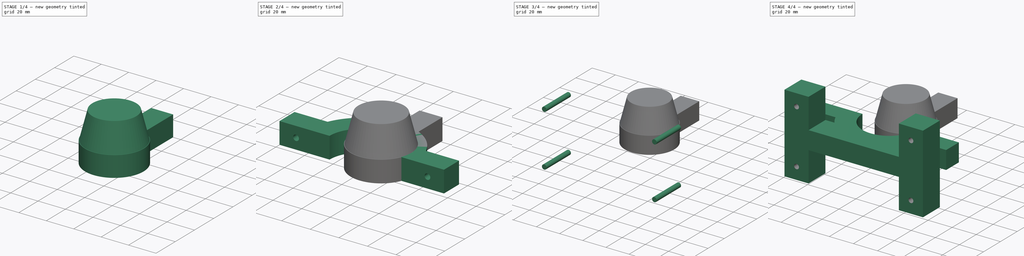
[diagram: build sequence overview — one tinted view per stage of 4, left to right]
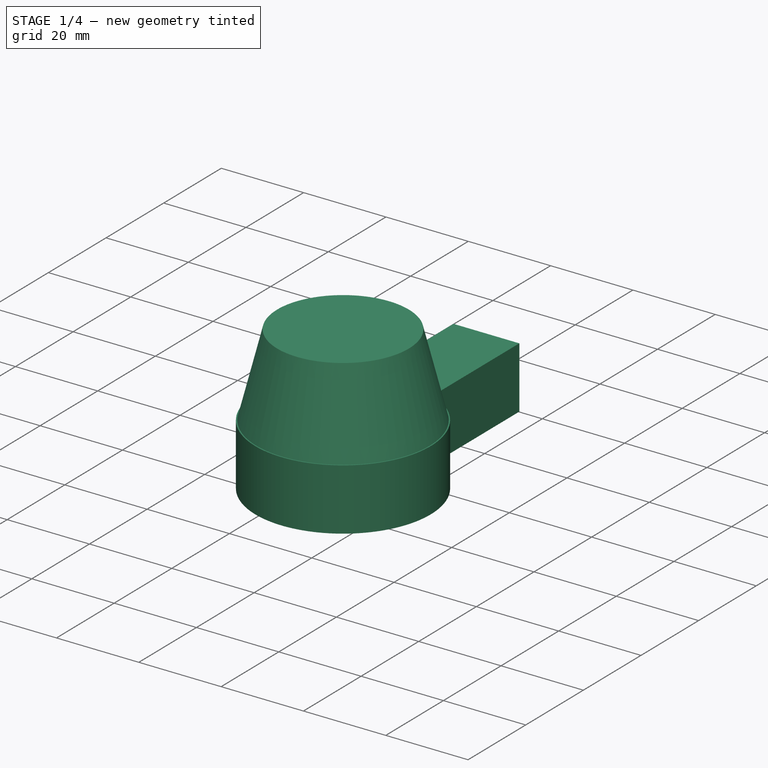
[diagram: stage 1 of 4 — iso view after this stage's code; geometry added in this stage tinted green]
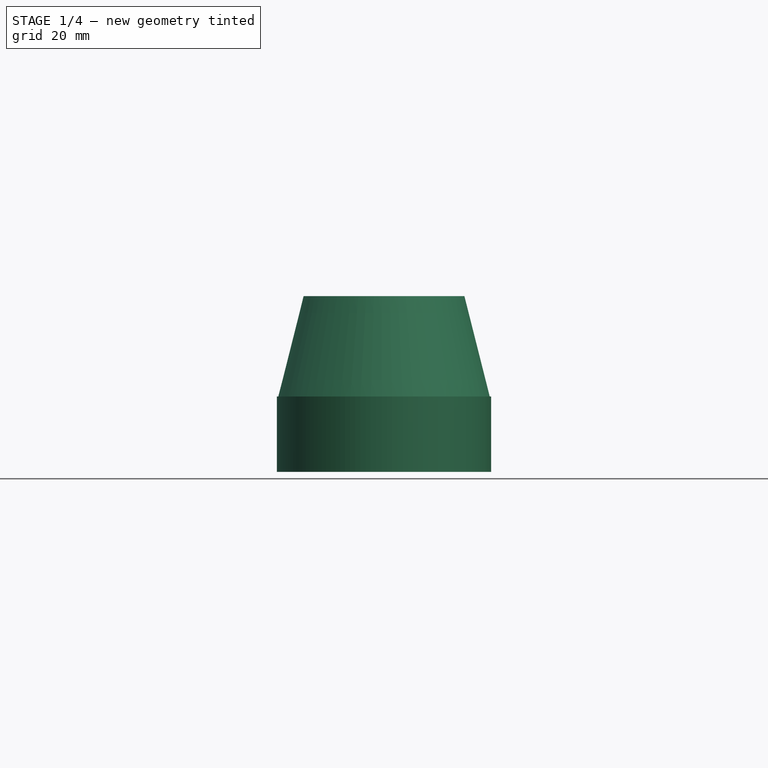
[diagram: stage 1 of 4 — front view after this stage's code; geometry added in this stage tinted green]
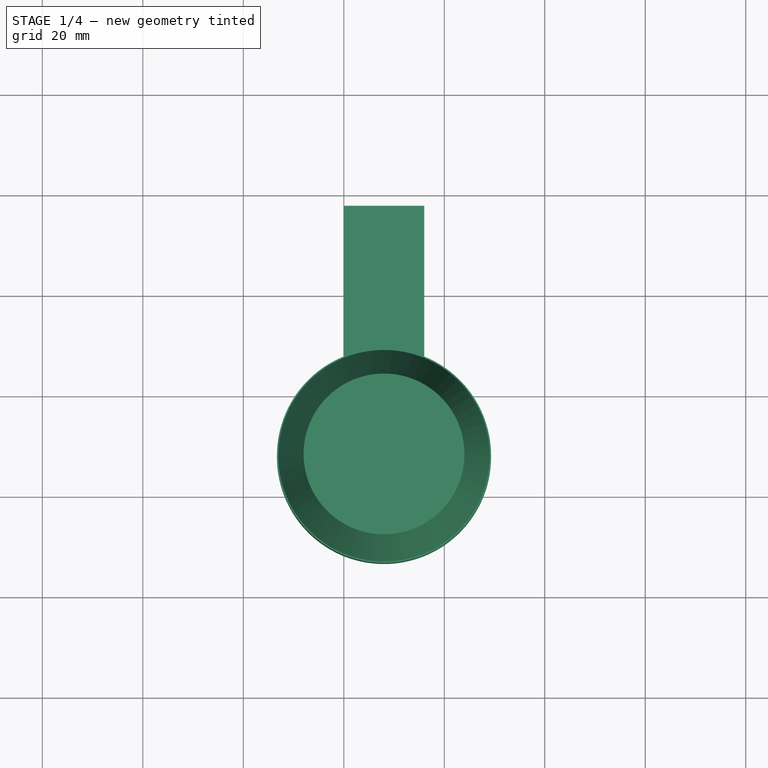
[diagram: stage 1 of 4 — top view after this stage's code; geometry added in this stage tinted green]
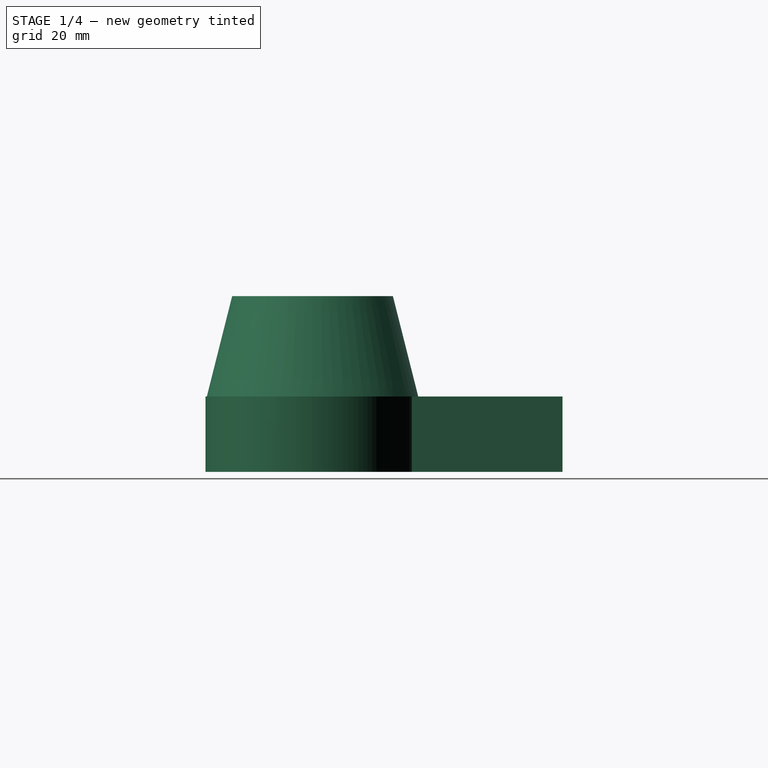
[diagram: stage 1 of 4 — right view after this stage's code; geometry added in this stage tinted green]
FCSTD DOCUMENT  (FreeCAD 0.20R29177 +426 (Git))
Label: ReverseMotorMount
License: All rights reserved
LicenseURL: http://en.wikipedia.org/wiki/All_rights_reserved
objects: Sketcher::SketchObject×9, Part::Extrusion×8, Part::Cut×3, Part::MultiFuse×2, Part::Loft×1
note: 23 computed .brp shape members not serialized (recipe doc carries the construction recipe); baked Part::Feature solids carry a one-line shape summary decoded from their .brp

FEATURE [Sketcher::SketchObject] Sketch005  label="SocketSketch"
  FullyConstrained = false
  sketch-geometry (16):
    g0: LineSegment StartX=0 StartY=0 StartZ=0 EndX=16 EndY=0 EndZ=0
    g1: LineSegment StartX=16 StartY=0 StartZ=0 EndX=16 EndY=16 EndZ=0
    g2: LineSegment StartX=16 StartY=16 StartZ=0 EndX=0 EndY=16 EndZ=0
    g3: LineSegment StartX=0 StartY=16 StartZ=0 EndX=0 EndY=0 EndZ=0
    g4: LineSegment StartX=0 StartY=0 StartZ=0 EndX=16 EndY=16 EndZ=0
    g5: LineSegment StartX=16 StartY=0 StartZ=0 EndX=0 EndY=16 EndZ=0
    g6: LineSegment StartX=16 StartY=16 StartZ=0 EndX=23.0711 EndY=23.0711 EndZ=0
    g7: LineSegment StartX=16 StartY=16 StartZ=0 EndX=0 EndY=16 EndZ=0
    g8: LineSegment StartX=16 StartY=27.7554 StartZ=0 EndX=16 EndY=16 EndZ=0
    g9: LineSegment StartX=0 StartY=16 StartZ=0 EndX=0 EndY=27.7554 EndZ=0
    g10: ArcOfCircle CenterX=8 CenterY=8 CenterZ=0 NormalX=0 NormalY=0 NormalZ=1 AngleXU=0 Radius=21.3137 StartAngle=1.95557 EndAngle=7.46921
    g11: ArcOfCircle CenterX=8 CenterY=8 CenterZ=0 NormalX=0 NormalY=0 NormalZ=1 AngleXU=0 Radius=21.3137 StartAngle=1.18603 EndAngle=1.95557
    g12: LineSegment StartX=0 StartY=27.7554 StartZ=0 EndX=16 EndY=27.7554 EndZ=0
    g13: LineSegment StartX=16 StartY=27.7554 StartZ=0 EndX=16 EndY=57.7554 EndZ=0
    g14: LineSegment StartX=16 StartY=57.7554 StartZ=0 EndX=0 EndY=57.7554 EndZ=0
    g15: LineSegment StartX=0 StartY=57.7554 StartZ=0 EndX=0 EndY=27.7554 EndZ=0
  constraints (14):
    c: DistanceY(g0,g10) = 8
    c: DistanceX(g0,g10) = 8
    c: Perpendicular(g3,g2)
    c: Perpendicular(g0,g1)
    c: Perpendicular(g2,g1)
    c: Coincident(g2,g3)
    c: Coincident(g2,g5)
    c: Coincident(g2,g7)
    c: Coincident(g2,g9)
    c: Coincident(g1,g2)
    c: Coincident(g1,g4)
    c: Coincident(g1,g6)
    c: Coincident(g1,g7)
    c: Coincident(g1,g8)
FEATURE [Part::Extrusion] Extrude006  label="Socket"
  Base = -> Sketch005
  Dir = (0,0,1)
  DirMode = 2
  FaceMakerClass = Part::FaceMakerBullseye
  LengthFwd = 15
  LengthRev = 0
  Solid = true
  Symmetric = false
FEATURE [Sketcher::SketchObject] Sketch006  label="ShaftTopSketch"
  AttachmentOffset = pos=(0,0,20) rot=(0,0,1;0rad)
  ExternalGeometry = -> [Extrude006]
  FullyConstrained = true
  MapMode = 5
  Placement = pos=(0,0,35) rot=(0,0,1;0rad)
  Support = -> [Extrude006]
  sketch-geometry (1):
    g0: Circle CenterX=8 CenterY=8 CenterZ=0 NormalX=0 NormalY=0 NormalZ=1 AngleXU=0 Radius=16
  constraints (2):
    c: Diameter(g0) = 32
    c: Coincident(g0,g-3)
FEATURE [Sketcher::SketchObject] Sketch007  label="ShaftBottomSketch"
  AttachmentOffset = pos=(0,0,-1) rot=(0,0,1;0rad)
  ExternalGeometry = -> [Sketch006,Extrude006]
  FullyConstrained = true
  MapMode = 5
  Placement = pos=(0,0,14) rot=(0,0,1;0rad)
  Support = -> [Extrude006]
  sketch-geometry (2):
    g0: Circle CenterX=8 CenterY=8 CenterZ=0 NormalX=0 NormalY=0 NormalZ=1 AngleXU=0 Radius=21.3
    g1: LineSegment StartX=0 StartY=0 StartZ=0 EndX=16 EndY=16 EndZ=0
  constraints (4):
    c: Diameter(g0) = 42.6
    c: Coincident(g0,g-3)
    c: Coincident(g1,g-4)
    c: Coincident(g1,g-5)
FEATURE [Part::Loft] Loft  label="Shaft"
  Closed = false
  MaxDegree = 5
  Ruled = false
  Sections = -> [Sketch006,Sketch007]
  Solid = true
FEATURE [Part::MultiFuse] Fusion001
  Shapes = -> [Loft,Extrude006]
FEATURE [Sketcher::SketchObject] Sketch008  label="ScrewHolesSketch"
  ExternalGeometry = -> [Sketch006]
  FullyConstrained = true
  MapMode = 5
  Placement = pos=(0,0,35) rot=(0,0,1;0rad)
  Support = -> [Loft]
  sketch-geometry (8):
    g0: Circle CenterX=16.4853 CenterY=16.4853 CenterZ=0 NormalX=0 NormalY=0 NormalZ=1 AngleXU=0 Radius=2
    g1: LineSegment StartX=8 StartY=8 StartZ=0 EndX=16.4853 EndY=16.4853 EndZ=0
    g2: Circle CenterX=-0.485281 CenterY=16.4853 CenterZ=0 NormalX=0 NormalY=0 NormalZ=1 AngleXU=0 Radius=2
    g3: LineSegment StartX=8 StartY=8 StartZ=0 EndX=-0.485281 EndY=16.4853 EndZ=0
    g4: Circle CenterX=-0.485281 CenterY=-0.485281 CenterZ=0 NormalX=0 NormalY=0 NormalZ=1 AngleXU=0 Radius=2
    g5: LineSegment StartX=8 StartY=8 StartZ=0 EndX=-0.485281 EndY=-0.485281 EndZ=0
    g6: Circle CenterX=16.4853 CenterY=-0.485281 CenterZ=0 NormalX=0 NormalY=0 NormalZ=1 AngleXU=0 Radius=2
    g7: LineSegment StartX=8 StartY=8 StartZ=0 EndX=16.4853 EndY=-0.485281 EndZ=0
  constraints (20):
    c: Distance(g-3,g0) = 12
    c: Diameter(g0) = 4
    c: Coincident(g1,g-3)
    c: Coincident(g1,g0)
    c: Angle(g-1,g1) = 0.785398
    c: Diameter(g2) = 4
    c: Coincident(g3,g2)
    c: Distance(g3) = 12
    c: Coincident(g3,g1)
    c: Angle(g3,g-1) = 0.785398
    c: Diameter(g4) = 4
    c: Coincident(g5,g4)
    c: Angle(g-1,g5) = 0.785398
    c: Coincident(g5,g1)
    c: Distance(g5) = 12
    c: Diameter(g6) = 4
    c: Coincident(g7,g6)
    c: Distance(g7) = 12
    c: Coincident(g7,g1)
    c: Angle(g7,g-1) = 0.785398
FEATURE [Part::Extrusion] Extrude007  label="ScrewHoles"
  Base = -> Sketch008
  Dir = (0,0,1)
  DirMode = 2
  FaceMakerClass = Part::FaceMakerBullseye
  LengthFwd = 0
  LengthRev = 20
  Solid = true
  Symmetric = false
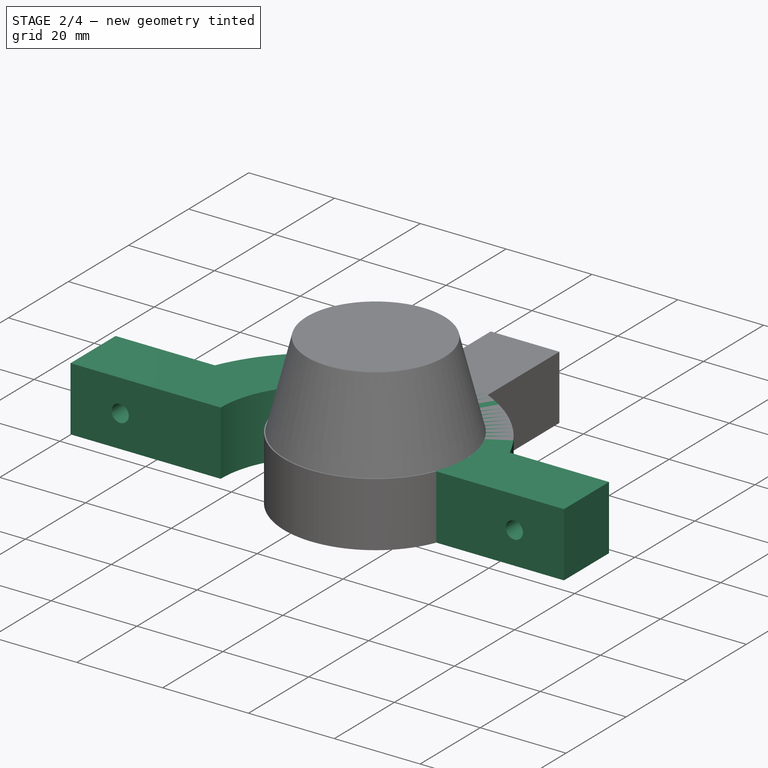
[diagram: stage 2 of 4 — iso view after this stage's code; geometry added in this stage tinted green]
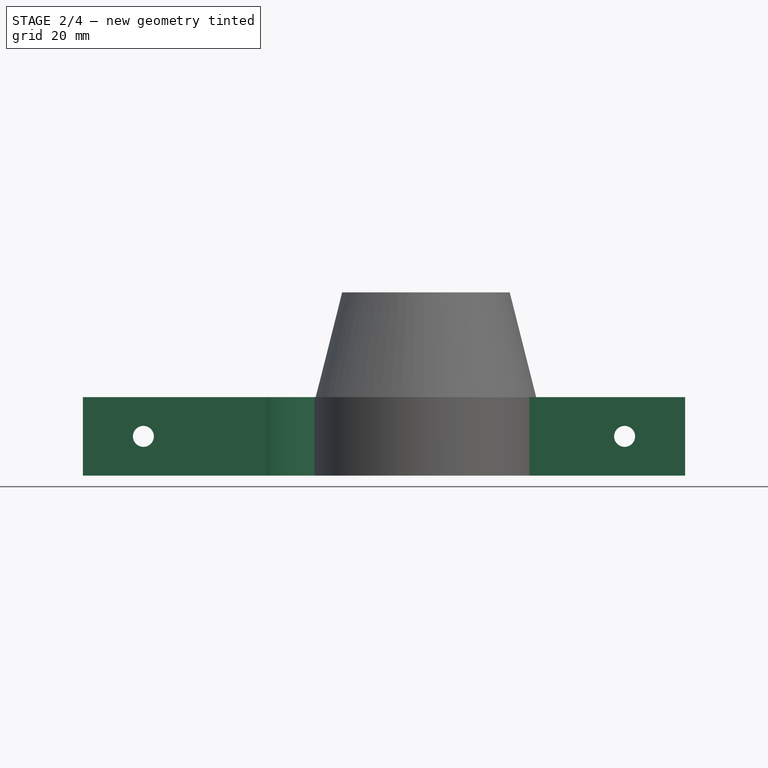
[diagram: stage 2 of 4 — front view after this stage's code; geometry added in this stage tinted green]
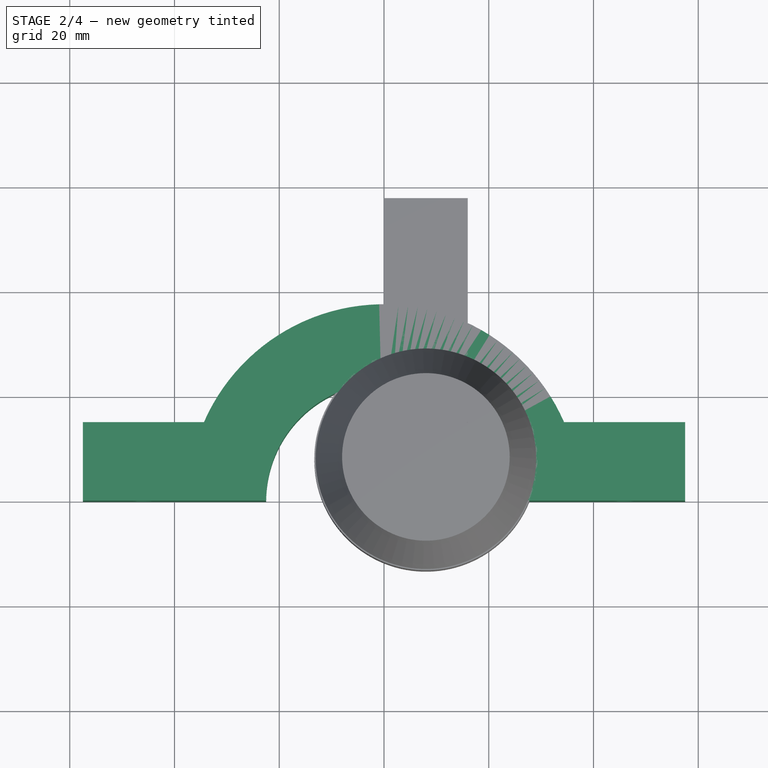
[diagram: stage 2 of 4 — top view after this stage's code; geometry added in this stage tinted green]
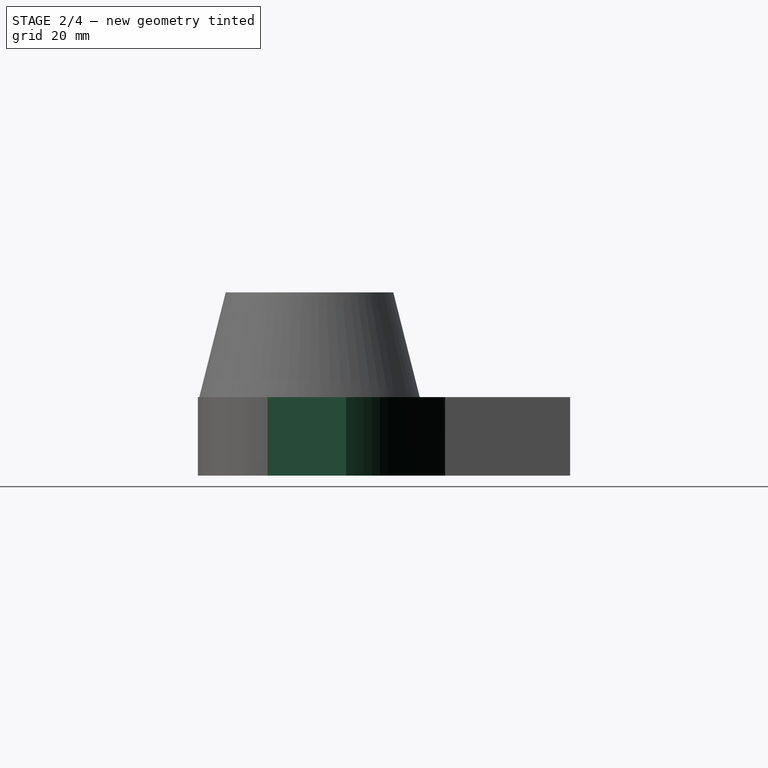
[diagram: stage 2 of 4 — right view after this stage's code; geometry added in this stage tinted green]
FEATURE [Sketcher::SketchObject] Sketch  label="TopSketch"
  FullyConstrained = true
  sketch-geometry (16):
    g0: ArcOfCircle CenterX=0 CenterY=0 CenterZ=0 NormalX=0 NormalY=0 NormalZ=1 AngleXU=0 Radius=22.5 StartAngle=0 EndAngle=3.14159
    g1: LineSegment StartX=-22.5 StartY=2.8e-15 StartZ=0 EndX=-37.5 EndY=4.6e-15 EndZ=0
    g2: LineSegment StartX=22.5 StartY=0 StartZ=0 EndX=37.5 EndY=0 EndZ=0
    g3: LineSegment StartX=-22.5 StartY=2.8e-15 StartZ=0 EndX=-57.5 EndY=2.8e-15 EndZ=0
    g4: LineSegment StartX=-57.5 StartY=2.8e-15 StartZ=0 EndX=-57.5 EndY=15 EndZ=0
    g5: LineSegment StartX=-22.5 StartY=15 StartZ=0 EndX=-22.5 EndY=3.6e-15 EndZ=0
    g6: ArcOfCircle CenterX=0 CenterY=0 CenterZ=0 NormalX=0 NormalY=0 NormalZ=1 AngleXU=0 Radius=37.5 StartAngle=2.73008 EndAngle=3.14159
    g7: LineSegment StartX=-57.5 StartY=15 StartZ=0 EndX=-34.3693 EndY=15 EndZ=0
    g8: LineSegment StartX=-34.3693 StartY=15 StartZ=0 EndX=-22.5 EndY=15 EndZ=0
    g9: LineSegment StartX=22.5 StartY=0 StartZ=0 EndX=57.5 EndY=0 EndZ=0
    g10: LineSegment StartX=57.5 StartY=0 StartZ=0 EndX=57.5 EndY=15 EndZ=0
    g11: LineSegment StartX=22.5 StartY=15 StartZ=0 EndX=22.5 EndY=0 EndZ=0
    g12: ArcOfCircle CenterX=0 CenterY=0 CenterZ=0 NormalX=0 NormalY=0 NormalZ=1 AngleXU=0 Radius=37.5 StartAngle=0 EndAngle=0.411517
    g13: ArcOfCircle CenterX=0 CenterY=0 CenterZ=0 NormalX=0 NormalY=0 NormalZ=1 AngleXU=0 Radius=37.5 StartAngle=0.411517 EndAngle=2.73008
    g14: LineSegment StartX=57.5 StartY=15 StartZ=0 EndX=34.3693 EndY=15 EndZ=0
    g15: LineSegment StartX=34.3693 StartY=15 StartZ=0 EndX=22.5 EndY=15 EndZ=0
  constraints (46):
    c: Coincident(g0,g-1)
    c: PointOnObject(g0,g-1)
    c: PointOnObject(g0,g-1)
    c: Radius(g0) = 22.5
    c: Coincident(g12,g0)
    c: PointOnObject(g12,g-1)
    c: PointOnObject(g6,g-1)
    c: Distance(g6,g0) = 15
    c: Coincident(g1,g0)
    c: Coincident(g1,g6)
    c: Coincident(g2,g0)
    c: Coincident(g2,g12)
    c: Coincident(g3,g4)
    c: Coincident(g4,g7)
    c: Coincident(g8,g5)
    c: Coincident(g5,g3)
    c: Horizontal(g3)
    c: Vertical(g4)
    c: Vertical(g5)
    c: Coincident(g3,g0)
    c: Distance(g4) = 15
    c: Distance(g3) = 35
    c: Coincident(g13,g6)
    c: Coincident(g12,g6)
    c: Coincident(g7,g8)
    c: Horizontal(g7)
    c: Horizontal(g8)
    c: PointOnObject(g7,g6)
    c: PointOnObject(g13,g8)
    c: Coincident(g9,g10)
    c: Coincident(g10,g14)
    c: Coincident(g15,g11)
    c: Coincident(g11,g9)
    c: Horizontal(g9)
    c: Vertical(g10)
    c: Vertical(g11)
    c: Coincident(g9,g0)
    c: Equal(g4,g10)
    c: Equal(g9,g3)
    c: Coincident(g12,g13)
    c: Coincident(g12,g13)
    c: Coincident(g14,g15)
    c: Horizontal(g14)
    c: Horizontal(g15)
    c: PointOnObject(g14,g12)
    c: PointOnObject(g12,g15)
FEATURE [Part::Extrusion] Extrude  label="TopBlock"
  Base = -> Sketch
  Dir = (0,0,1)
  DirMode = 2
  FaceMakerClass = Part::FaceMakerBullseye
  LengthFwd = 15
  LengthRev = 0
  Solid = true
  Symmetric = false
FEATURE [Sketcher::SketchObject] Sketch004  label="ConnectScrewsSketch"
  ExternalGeometry = -> [Extrude]
  FullyConstrained = true
  MapMode = 5
  Placement = pos=(0,15,0) rot=(0,0.707107,0.707107;3.14159rad)
  Support = -> [Extrude]
  sketch-geometry (10):
    g0: Circle CenterX=-45.9347 CenterY=7.5 CenterZ=0 NormalX=0 NormalY=0 NormalZ=1 AngleXU=0 Radius=2
    g1: Circle CenterX=45.9347 CenterY=7.5 CenterZ=0 NormalX=0 NormalY=0 NormalZ=1 AngleXU=0 Radius=2
    g2: LineSegment StartX=-57.5 StartY=15 StartZ=0 EndX=-45.9347 EndY=7.5 EndZ=0
    g3: LineSegment StartX=-45.9347 StartY=7.5 StartZ=0 EndX=-34.3693 EndY=15 EndZ=0
    g4: LineSegment StartX=-45.9347 StartY=7.5 StartZ=0 EndX=-34.3693 EndY=0 EndZ=0
    g5: LineSegment StartX=-45.9347 StartY=7.5 StartZ=0 EndX=-57.5 EndY=0 EndZ=0
    g6: LineSegment StartX=34.3693 StartY=15 StartZ=0 EndX=45.9347 EndY=7.5 EndZ=0
    g7: LineSegment StartX=57.5 StartY=15 StartZ=0 EndX=45.9347 EndY=7.5 EndZ=0
    g8: LineSegment StartX=45.9347 StartY=7.5 StartZ=0 EndX=34.3693 EndY=-2.7e-15 EndZ=0
    g9: LineSegment StartX=45.9347 StartY=7.5 StartZ=0 EndX=57.5 EndY=0 EndZ=0
  constraints (22):
    c: Coincident(g2,g-3)
    c: Coincident(g2,g0)
    c: Coincident(g3,g0)
    c: Coincident(g3,g-3)
    c: Coincident(g4,g0)
    c: Coincident(g4,g-5)
    c: Coincident(g5,g0)
    c: Coincident(g5,g-5)
    c: Equal(g2,g5)
    c: Equal(g5,g4)
    c: Diameter(g0) = 4
    c: Coincident(g6,g-4)
    c: Coincident(g6,g1)
    c: Coincident(g7,g-4)
    c: Coincident(g7,g1)
    c: Coincident(g8,g1)
    c: Coincident(g8,g-6)
    c: Coincident(g9,g1)
    c: Coincident(g9,g-6)
    c: Equal(g9,g7)
    c: Equal(g7,g6)
    c: Diameter(g1) = 4
FEATURE [Part::Extrusion] Extrude004  label="ConnectScrewsTop"
  Base = -> Sketch004
  Dir = (0,1,-2e-16)
  DirMode = 2
  FaceMakerClass = Part::FaceMakerBullseye
  LengthFwd = 0
  LengthRev = 30
  Solid = true
  Symmetric = false
FEATURE [Part::Cut] Cut001  label="Top"
  Base = -> Extrude
  Tool = -> Extrude004
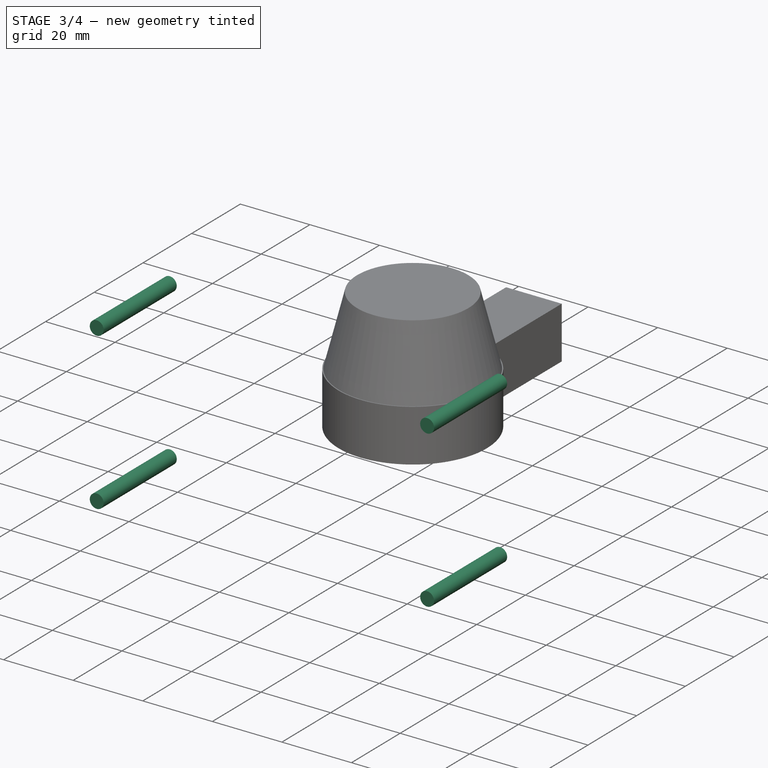
[diagram: stage 3 of 4 — iso view after this stage's code; geometry added in this stage tinted green]
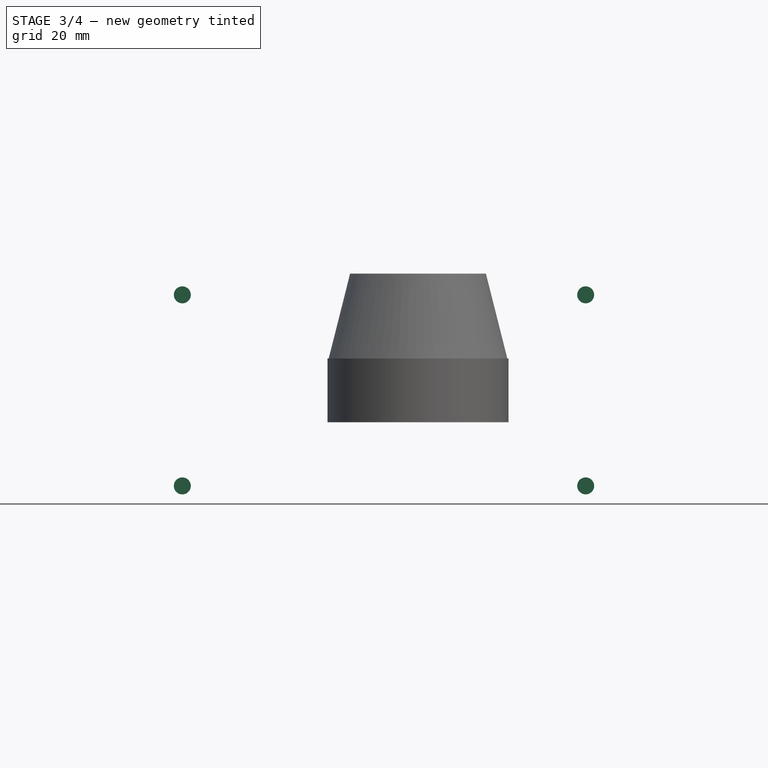
[diagram: stage 3 of 4 — front view after this stage's code; geometry added in this stage tinted green]
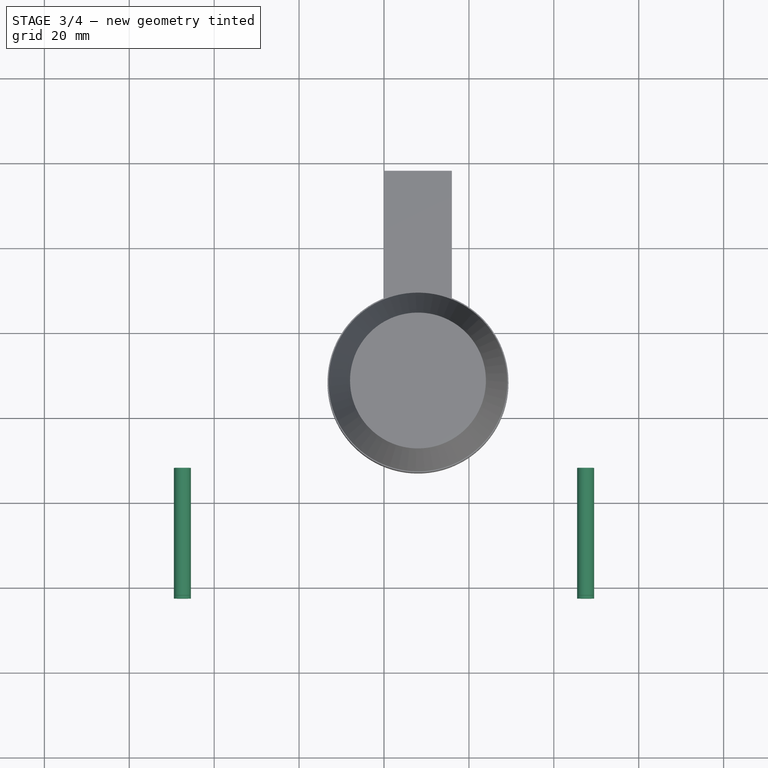
[diagram: stage 3 of 4 — top view after this stage's code; geometry added in this stage tinted green]
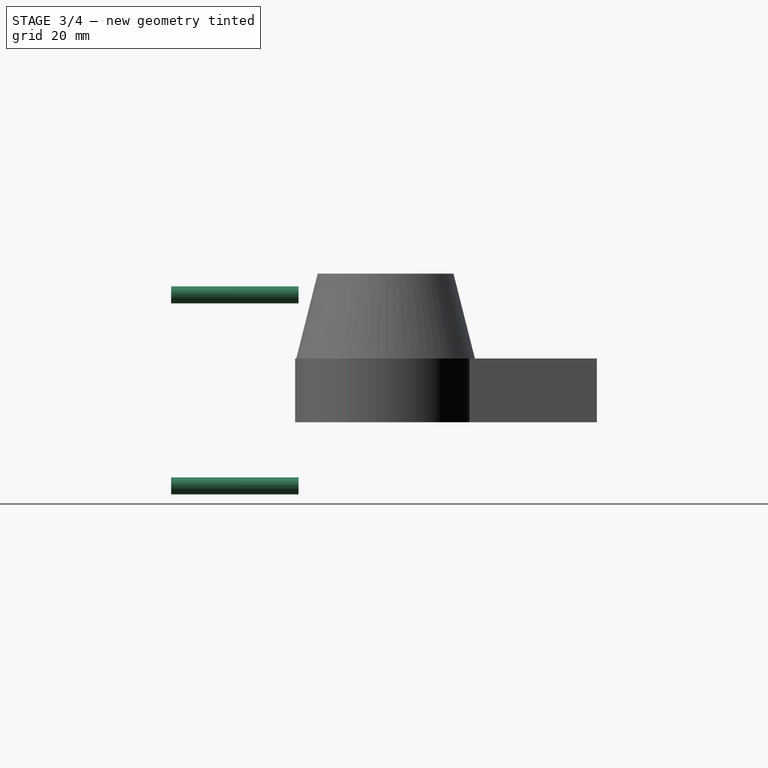
[diagram: stage 3 of 4 — right view after this stage's code; geometry added in this stage tinted green]
FEATURE [Sketcher::SketchObject] Sketch001  label="BottomSketch"
  ExternalGeometry = -> [Sketch,Cut001]
  FullyConstrained = true
  MapMode = 2
  Support = -> [Sketch]
  sketch-geometry (25):
    g0: ArcOfCircle CenterX=0 CenterY=0 CenterZ=0 NormalX=0 NormalY=0 NormalZ=1 AngleXU=0 Radius=22.5 StartAngle=3.14159 EndAngle=6.28319
    g1: LineSegment StartX=-22.5 StartY=3.6e-15 StartZ=0 EndX=-57.5 EndY=0 EndZ=0
    g2: LineSegment StartX=-57.5 StartY=0 StartZ=0 EndX=-57.5 EndY=-15 EndZ=0
    g3: LineSegment StartX=-22.5 StartY=-15 StartZ=0 EndX=-22.5 EndY=3.6e-15 EndZ=0
    g4: LineSegment StartX=-57.5 StartY=-15 StartZ=0 EndX=-34.3693 EndY=-15 EndZ=0
    g5: LineSegment StartX=-34.3693 StartY=-15 StartZ=0 EndX=-22.5 EndY=-15 EndZ=0
    g6: ArcOfCircle CenterX=0 CenterY=0 CenterZ=0 NormalX=0 NormalY=0 NormalZ=1 AngleXU=0 Radius=37.5 StartAngle=3.14159 EndAngle=3.55311
    g7: LineSegment StartX=22.5 StartY=0 StartZ=0 EndX=57.5 EndY=0 EndZ=0
    g8: LineSegment StartX=57.5 StartY=0 StartZ=0 EndX=57.5 EndY=-15 EndZ=0
    g9: LineSegment StartX=22.5 StartY=-15 StartZ=0 EndX=22.5 EndY=0 EndZ=0
    g10: ArcOfCircle CenterX=0 CenterY=0 CenterZ=0 NormalX=0 NormalY=0 NormalZ=1 AngleXU=0 Radius=37.5 StartAngle=5.87167 EndAngle=6.28319
    g11: LineSegment StartX=57.5 StartY=-15 StartZ=0 EndX=34.3693 EndY=-15 EndZ=0
    g12: LineSegment StartX=34.3693 StartY=-15 StartZ=0 EndX=22.5 EndY=-15 EndZ=0
    g13: LineSegment StartX=-57.5 StartY=-42.5 StartZ=0 EndX=-57.5 EndY=-22.5 EndZ=0
    g14: LineSegment StartX=57.5 StartY=-22.5 StartZ=0 EndX=57.5 EndY=-42.5 EndZ=0
    g15: LineSegment StartX=57.5 StartY=-42.5 StartZ=0 EndX=-57.5 EndY=-42.5 EndZ=0
    g16: GeomPoint X=-6.9e-15 Y=-37.5 Z=0
    g17: LineSegment StartX=-57.5 StartY=-15 StartZ=0 EndX=-57.5 EndY=-22.5 EndZ=0
    g18: ArcOfCircle CenterX=0 CenterY=0 CenterZ=0 NormalX=0 NormalY=0 NormalZ=1 AngleXU=0 Radius=37.5 StartAngle=3.55311 EndAngle=3.78509
    g19: ArcOfCircle CenterX=0 CenterY=0 CenterZ=0 NormalX=0 NormalY=0 NormalZ=1 AngleXU=0 Radius=37.5 StartAngle=3.78509 EndAngle=4.71239
    g20: LineSegment StartX=-57.5 StartY=-22.5 StartZ=0 EndX=-30 EndY=-22.5 EndZ=0
    g21: LineSegment StartX=-30 StartY=-22.5 StartZ=0 EndX=30 EndY=-22.5 EndZ=0
    g22: LineSegment StartX=30 StartY=-22.5 StartZ=0 EndX=57.5 EndY=-22.5 EndZ=0
    g23: ArcOfCircle CenterX=0 CenterY=0 CenterZ=0 NormalX=0 NormalY=0 NormalZ=1 AngleXU=0 Radius=37.5 StartAngle=4.71239 EndAngle=5.63968
    g24: ArcOfCircle CenterX=0 CenterY=0 CenterZ=0 NormalX=0 NormalY=0 NormalZ=1 AngleXU=0 Radius=37.5 StartAngle=5.63968 EndAngle=5.87167
  constraints (69):
    c: Coincident(g0,g-3)
    c: Coincident(g0,g-3)
    c: Coincident(g6,g0)
    c: PointOnObject(g6,g-1)
    c: PointOnObject(g10,g-1)
    c: Distance(g6,g0) = 15
    c: Coincident(g1,g2)
    c: Coincident(g2,g4)
    c: Coincident(g5,g3)
    c: Coincident(g3,g1)
    c: Vertical(g2)
    c: Vertical(g3)
    c: Coincident(g1,g0)
    c: Coincident(g1,g-4)
    c: Coincident(g4,g5)
    c: Horizontal(g4)
    c: Horizontal(g5)
    c: Coincident(g6,g18)
    c: Coincident(g6,g18)
    c: PointOnObject(g6,g4)
    c: Coincident(g7,g8)
    c: Coincident(g8,g11)
    c: Coincident(g12,g9)
    c: Coincident(g9,g7)
    c: Vertical(g8)
    c: Vertical(g9)
    c: Coincident(g7,g0)
    c: Coincident(g7,g-5)
    c: Equal(g8,g2)
    c: Coincident(g24,g10)
    c: Coincident(g18,g10)
    c: Coincident(g11,g12)
    c: Horizontal(g11)
    c: Horizontal(g12)
    c: PointOnObject(g24,g12)
    c: PointOnObject(g11,g10)
    c: PointOnObject(g0,g-1)
    c: Coincident(g19,g23)
    c: Coincident(g18,g23)
    c: PointOnObject(g19,g-2)
    c: Coincident(g13,g20)
    c: Coincident(g22,g14)
    c: Coincident(g14,g15)
    c: Coincident(g15,g13)
    c: Horizontal(g15)
    c: Vertical(g13)
    c: Vertical(g14)
    c: Coincident(g16,g19)
    c: Coincident(g17,g2)
    c: Coincident(g17,g13)
    c: Vertical(g17)
    c: Coincident(g18,g19)
    c: Coincident(g18,g19)
    c: PointOnObject(g4,g18)
    c: Coincident(g20,g21)
    c: Horizontal(g20)
    c: Tangent(g20,g0)
    c: Coincident(g21,g22)
    c: Horizontal(g22)
    c: Tangent(g21,g0)
    c: Coincident(g23,g24)
    c: Coincident(g23,g24)
    c: PointOnObject(g18,g21)
    c: PointOnObject(g20,g19)
    c: PointOnObject(g21,g23)
    c: PointOnObject(g23,g21)
    c: Equal(g-6,g2)
    c: Distance(g13) = 20
    c: Equal(g22,g20)
FEATURE [Part::Extrusion] Extrude001  label="BottomBlock"
  Base = -> Sketch001
  Dir = (0,0,1)
  DirMode = 2
  FaceMakerClass = Part::FaceMakerBullseye
  LengthFwd = 15
  LengthRev = 0
  Solid = true
  Symmetric = false
FEATURE [Sketcher::SketchObject] Sketch002  label="BaseSketch"
  ExternalGeometry = -> [Extrude001]
  FullyConstrained = true
  MapMode = 5
  Placement = pos=(0,0,15) rot=(0,0,1;0rad)
  Support = -> [Extrude001]
  sketch-geometry (10):
    g0: LineSegment StartX=57.5 StartY=-22.5 StartZ=0 EndX=57.5 EndY=-42.5 EndZ=0
    g1: LineSegment StartX=-57.5 StartY=-42.5 StartZ=0 EndX=-57.5 EndY=-22.5 EndZ=0
    g2: LineSegment StartX=-57.5 StartY=-22.5 StartZ=0 EndX=-37.5 EndY=-22.5 EndZ=0
    g3: LineSegment StartX=-37.5 StartY=-22.5 StartZ=0 EndX=37.5 EndY=-22.5 EndZ=0
    g4: LineSegment StartX=37.5 StartY=-22.5 StartZ=0 EndX=57.5 EndY=-22.5 EndZ=0
    g5: LineSegment StartX=57.5 StartY=-42.5 StartZ=0 EndX=37.5 EndY=-42.5 EndZ=0
    g6: LineSegment StartX=37.5 StartY=-42.5 StartZ=0 EndX=-37.5 EndY=-42.5 EndZ=0
    g7: LineSegment StartX=-37.5 StartY=-42.5 StartZ=0 EndX=-57.5 EndY=-42.5 EndZ=0
    g8: LineSegment StartX=-37.5 StartY=-42.5 StartZ=0 EndX=-37.5 EndY=-22.5 EndZ=0
    g9: LineSegment StartX=37.5 StartY=-42.5 StartZ=0 EndX=37.5 EndY=-22.5 EndZ=0
  constraints (26):
    c: Coincident(g4,g0)
    c: Coincident(g0,g5)
    c: Coincident(g7,g1)
    c: Coincident(g1,g2)
    c: Vertical(g0)
    c: Vertical(g1)
    c: Coincident(g2,g-3)
    c: Coincident(g0,g-4)
    c: Coincident(g2,g3)
    c: Horizontal(g2)
    c: Coincident(g3,g4)
    c: Horizontal(g3)
    c: Horizontal(g4)
    c: Coincident(g5,g6)
    c: Horizontal(g5)
    c: Coincident(g6,g7)
    c: Horizontal(g6)
    c: Horizontal(g7)
    c: Equal(g6,g3)
    c: Coincident(g8,g6)
    c: Coincident(g8,g2)
    c: Vertical(g8)
    c: Equal(g4,g2)
    c: Equal(g1,g2)
    c: Coincident(g9,g5)
    c: Coincident(g9,g4)
FEATURE [Part::Extrusion] Extrude002  label="BaseBlock"
  Base = -> Sketch002
  Dir = (0,0,1)
  DirMode = 2
  FaceMakerClass = Part::FaceMakerBullseye
  LengthFwd = 25
  LengthRev = 40
  Solid = true
  Symmetric = false
FEATURE [Sketcher::SketchObject] Sketch003  label="BaseScrewsSketch"
  ExternalGeometry = -> [Extrude002]
  FullyConstrained = true
  MapMode = 5
  Placement = pos=(0,-42.5,0) rot=(1,0,0;1.5708rad)
  Support = -> [Extrude002]
  sketch-geometry (4):
    g0: Circle CenterX=-47.5 CenterY=30 CenterZ=0 NormalX=0 NormalY=0 NormalZ=1 AngleXU=0 Radius=2
    g1: Circle CenterX=-47.5 CenterY=-15 CenterZ=0 NormalX=0 NormalY=0 NormalZ=1 AngleXU=0 Radius=2
    g2: Circle CenterX=47.5 CenterY=30 CenterZ=0 NormalX=0 NormalY=0 NormalZ=1 AngleXU=0 Radius=2
    g3: Circle CenterX=47.5 CenterY=-15 CenterZ=0 NormalX=0 NormalY=0 NormalZ=1 AngleXU=0 Radius=2
  constraints (12):
    c: DistanceY(g0,g-3) = 10
    c: DistanceX(g-3,g0) = 10
    c: Diameter(g0) = 4
    c: DistanceY(g-6,g1) = 10
    c: DistanceX(g-6,g1) = 10
    c: Diameter(g1) = 4
    c: DistanceY(g-7,g3) = 10
    c: DistanceX(g3,g-7) = 10
    c: DistanceY(g2,g-7) = 10
    c: DistanceX(g2,g-7) = 10
    c: Diameter(g2) = 4
    c: Diameter(g3) = 4
FEATURE [Part::Extrusion] Extrude003  label="BaseScrews"
  Base = -> Sketch003
  Dir = (0,-1,2e-16)
  DirMode = 2
  FaceMakerClass = Part::FaceMakerBullseye
  LengthFwd = 0
  LengthRev = 30
  Solid = true
  Symmetric = false
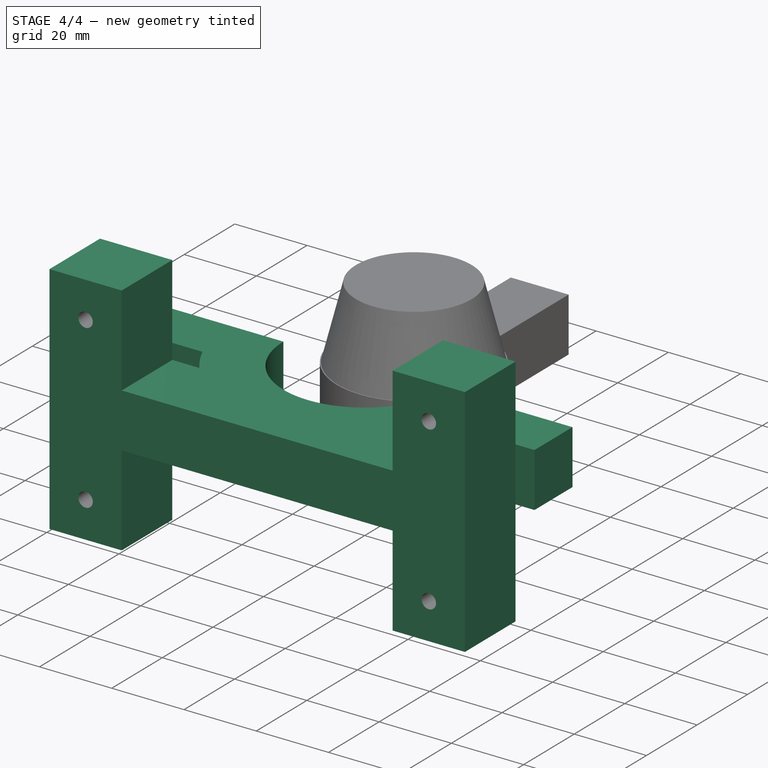
[diagram: stage 4 of 4 — iso view after this stage's code; geometry added in this stage tinted green]
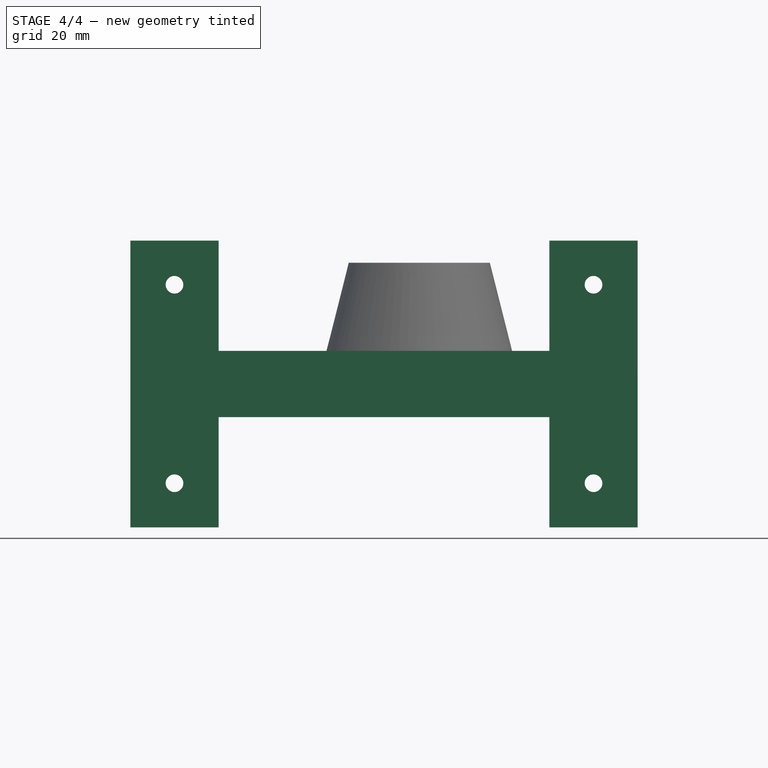
[diagram: stage 4 of 4 — front view after this stage's code; geometry added in this stage tinted green]
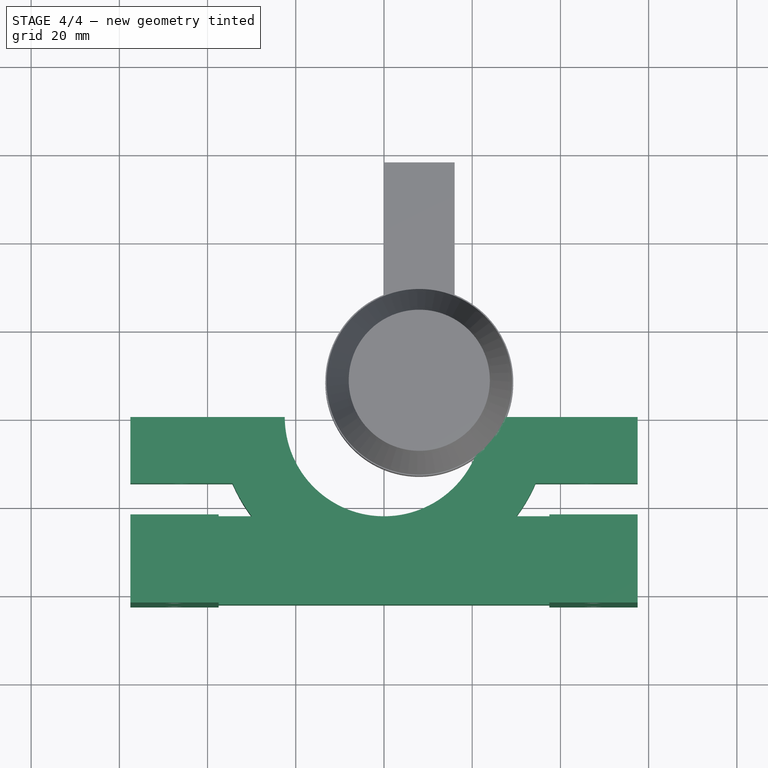
[diagram: stage 4 of 4 — top view after this stage's code; geometry added in this stage tinted green]
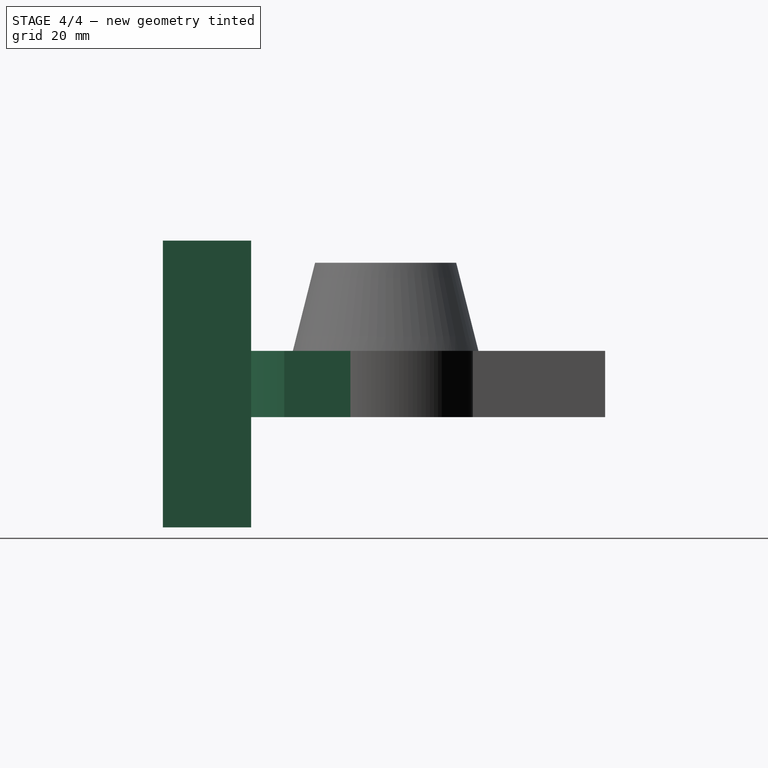
[diagram: stage 4 of 4 — right view after this stage's code; geometry added in this stage tinted green]
FEATURE [Part::Extrusion] Extrude005  label="ConnectScrewsBottom"
  Base = -> Sketch004
  Dir = (0,1,-2e-16)
  DirMode = 2
  FaceMakerClass = Part::FaceMakerBullseye
  LengthFwd = 0
  LengthRev = 30
  Solid = true
  Symmetric = false
FEATURE [Part::Cut] Cut002  label="Bottom"
  Base = -> Extrude001
  Tool = -> Extrude005
FEATURE [Part::Cut] Cut  label="Base"
  Base = -> Extrude002
  Tool = -> Extrude003
FEATURE [Part::MultiFuse] Fusion  label="BottomHalf"
  Shapes = -> [Cut,Cut002]
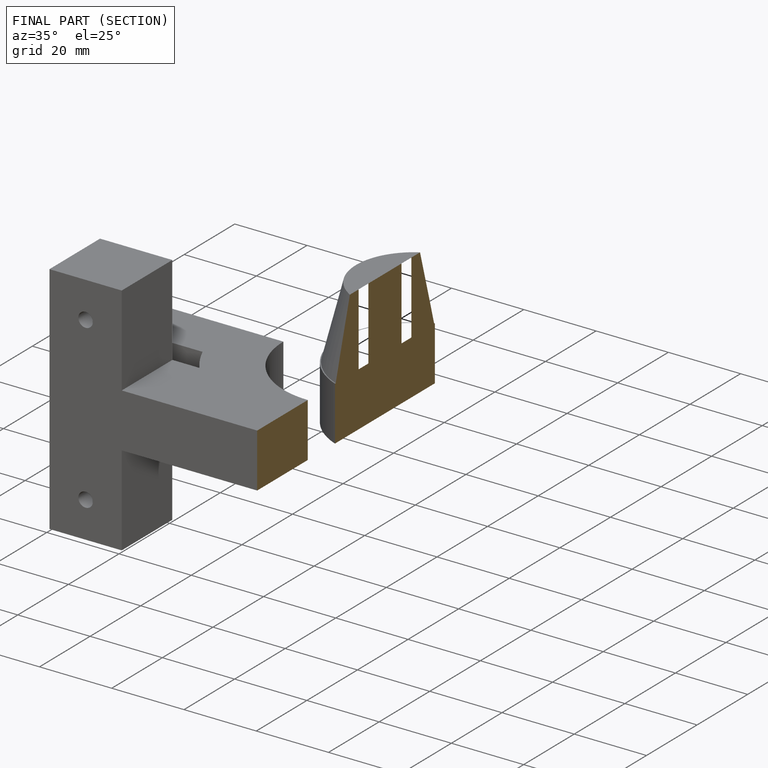
[diagram: finished part — half-section view (interior)]
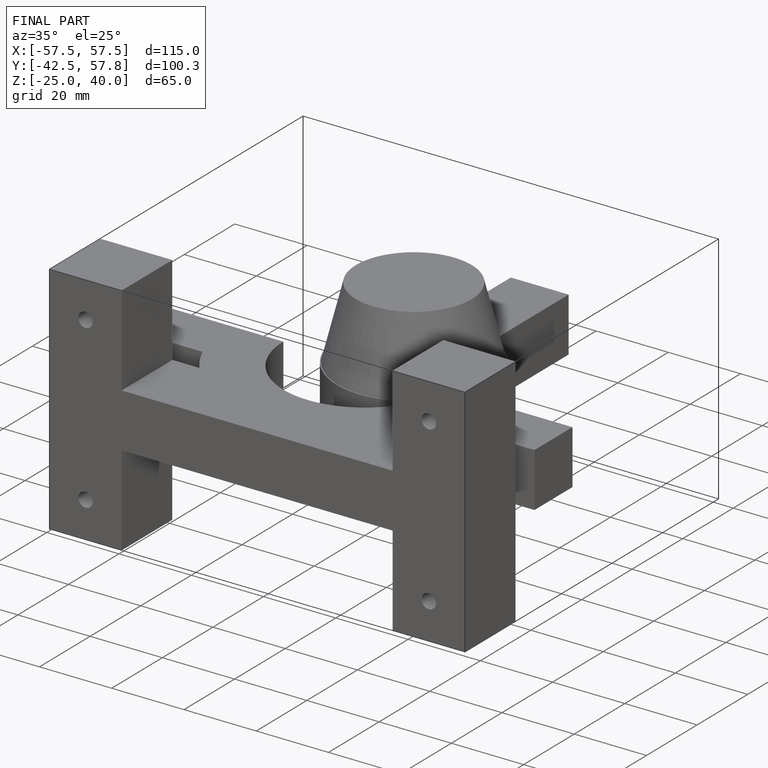
[diagram: finished part — iso view with bounding-box wireframe]
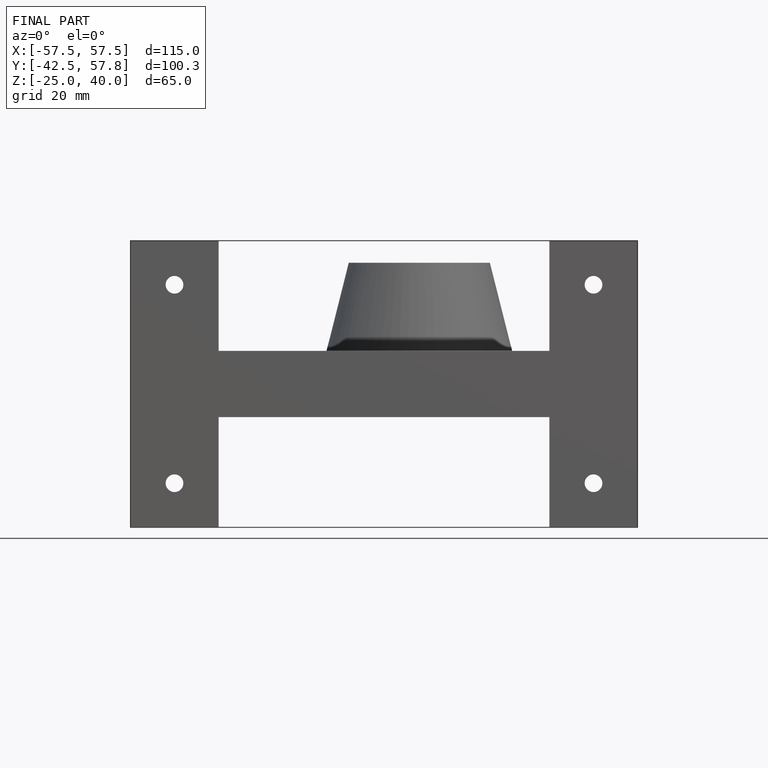
[diagram: finished part — front view with bounding-box wireframe]
